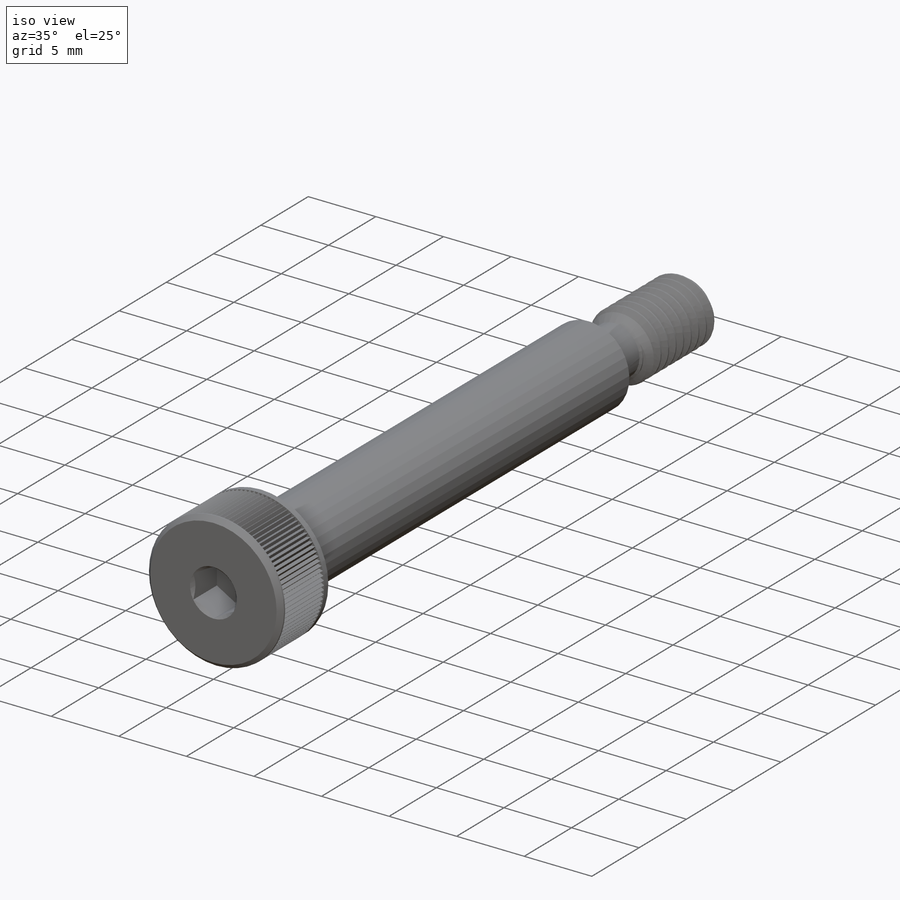
[diagram: iso view]
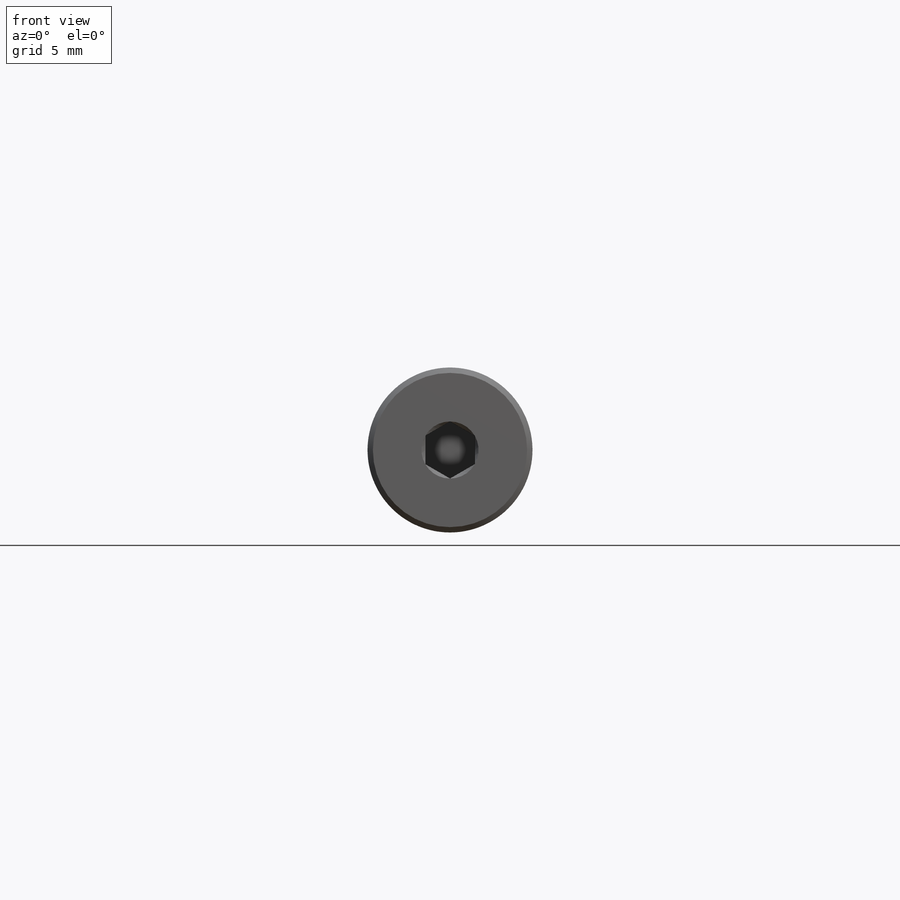
[diagram: front view]
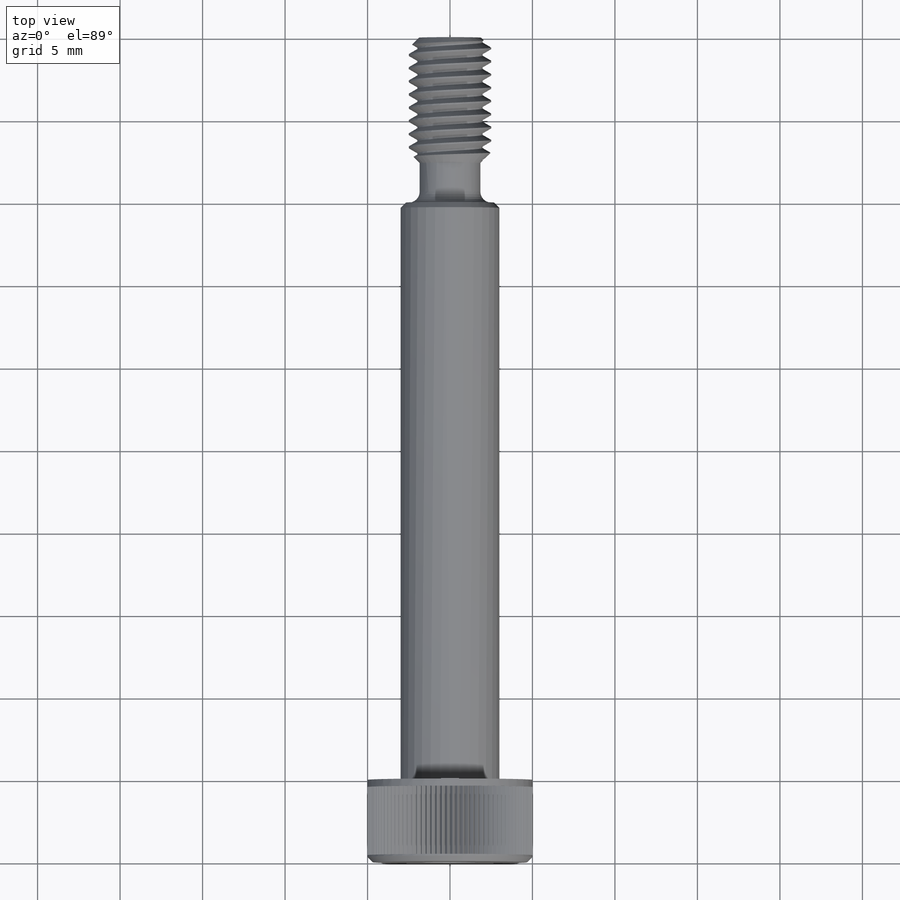
[diagram: top view]
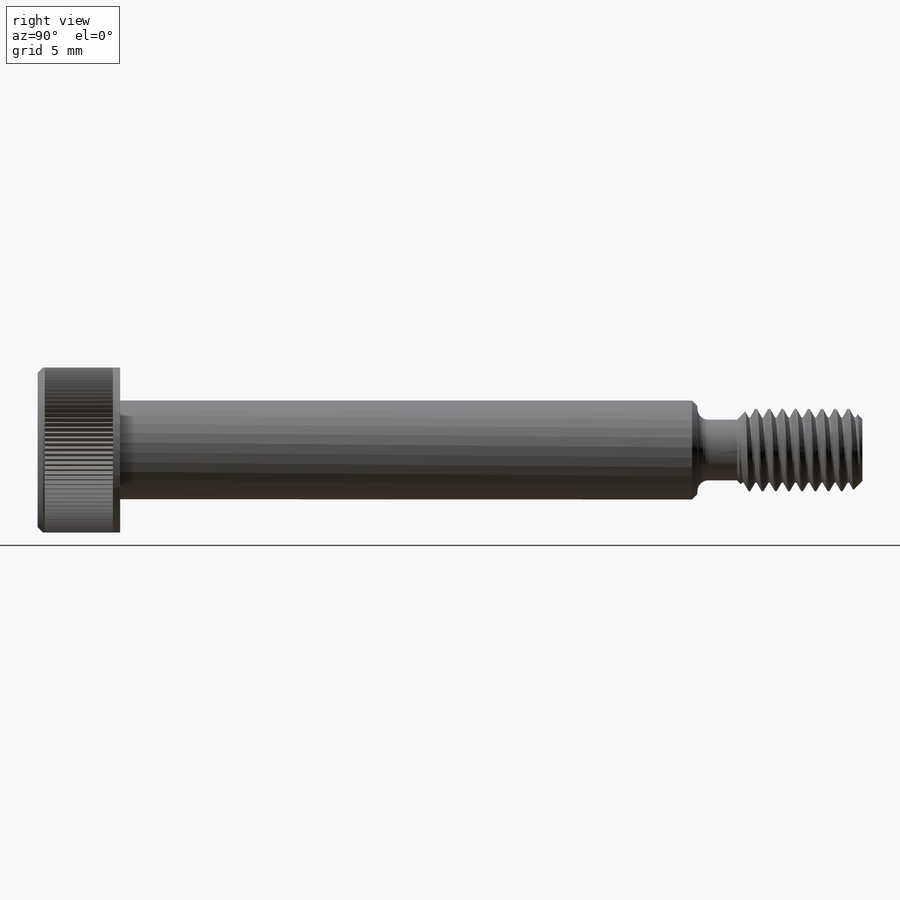
[diagram: right view]
SOLIDWORKS PART (.sldprt)
format: sldprt  version: not decoded by parser v0  size: 1,024,512 bytes
history: native  units: mm
features: sketch x10, cut_extrude x4, plane x2, chamfer x2, material x1, revolve x1, helix x1, cut_revolve x1, pattern_circular x1, sweep x1, boolean_combine x1 (+20 scaffold rows collapsed; 1 parser-record rows omitted)
feature tree (46):
  scaffold x20  (default folders/planes/origin — collapsed)
  material  "Material <not specified>"
  sketch  "Sketch1"  dims[c1.Head Dia=10.0mm c1.Head Ht=5.0mm c1.Thread Lg=10.0mm c1.Shoulder Lg=19.05mm c1.Thread Dia=5.0mm c1.Shoulder Dia=6.0mm c2.Shoulder Lg=35.0mm c2.D1=2.8mm]
  revolve  "Revolve1"  Angle=360deg
  plane  "Plane1"
  sketch  "Sketch3"
  helix  "Helix/Spiral1"  Pitch=10.8mm
  sketch  "Sketch5"  dims[c1.D1=3.0mm c1.D2=0.0254mm c1.D3=~11.091573mm c2.D3=45.0deg c2.CADB=2.4mm c2.CADA=3.68mm c2.D1=~2.598333mm c3.D1=45.0deg]
  cut_revolve  "Cut-Revolve1"  Angle=360deg
  chamfer  "Chamfer1"  Distance=0.625mm Angle=45deg
  chamfer  "Chamfer2"  Distance=0.325mm Angle=45deg
  sketch  "Sketch10"  dims[D1=4.35mm D2=~0.358882mm]
  plane  "Plane2"
  sketch  "Sketch11"  dims[c1.D1=0.26mm c1.D2=2.5mm c2.D2=~3.439259deg c2.D1=0.15mm]
  cut_extrude  "Cut-Extrude5"  Depth=4.1325mm
  pattern_circular  "CirPattern1"  Count=99 Angle=360deg
  sketch  "Sketch8"  dims[Hex=3.0mm]
  cut_extrude  "Cut-Extrude2"  Depth=2.5mm
  sketch  "Sketch9"  dims[D1=~1.732051mm]
  cut_extrude  "Cut-Extrude4"  Depth=2.5mm
  parser-record x1  (decoder bookkeeping rows leaked as tree rows — omitted from the tree; the rows remain in map.json)
  sketch  "Sketch4"  dims[c1.D1=0.1mm c1.D2=0.4mm c1.D3=~3.497926mm c2.D3=60.0deg]
  sweep  "Sweep1"
  sketch  "Sketch6"  dims[D1=0.0mm]
  cut_extrude  "Cut-Extrude1"  [1 undecoded]
  boolean_combine  "Combine1"
  sketch  "reference 1"
decode coverage: 17 of 22 modeling features carry decoded parameters
note: ~ marks probable driven/reference dimensions
note: 1 parameter value undecoded
note: suppression state not decoded; provenance and decode notes live in map.json
